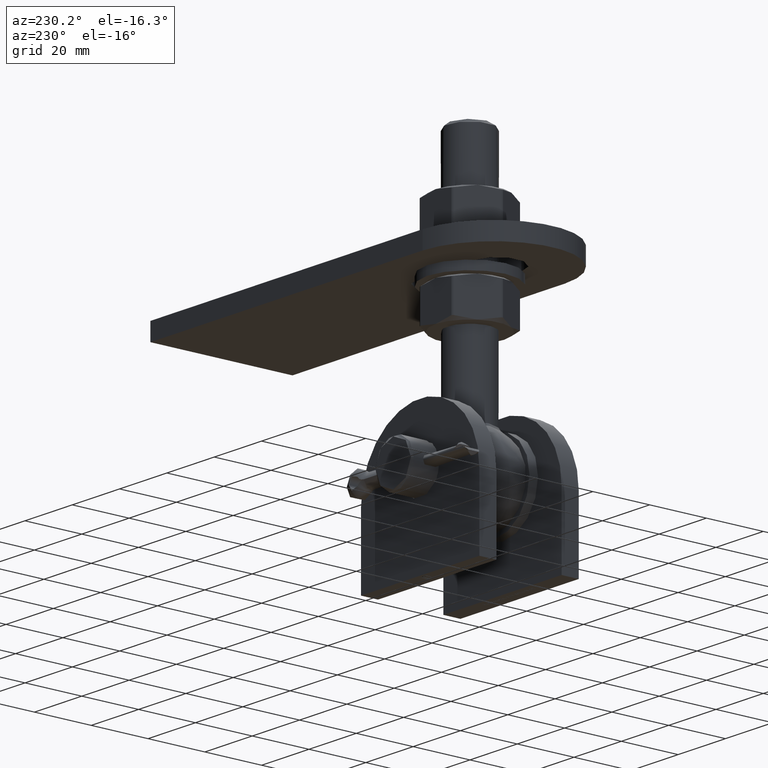
[diagram: clean part render]
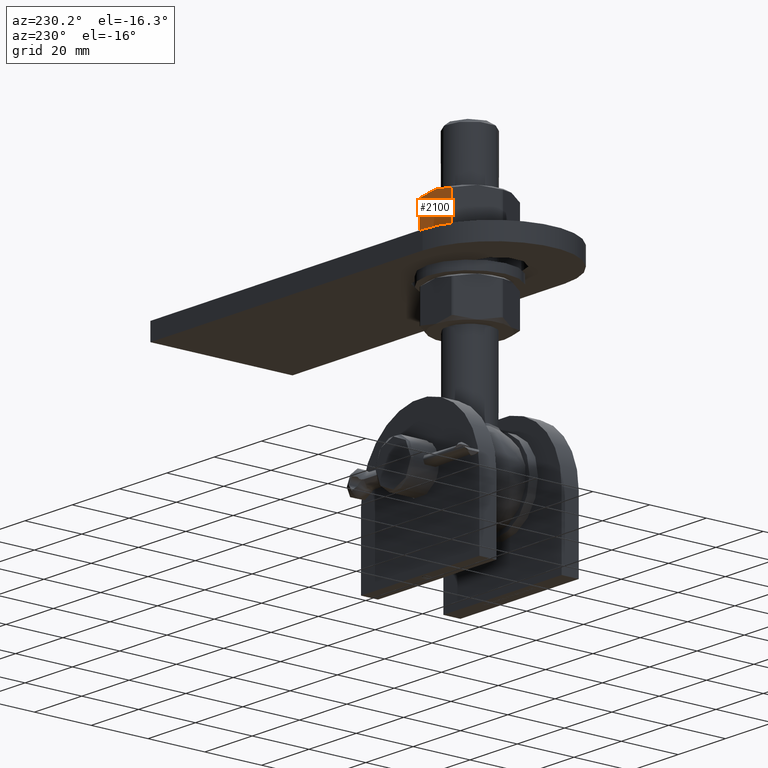
[diagram: same view with one face highlighted and labeled with its STEP entity id]
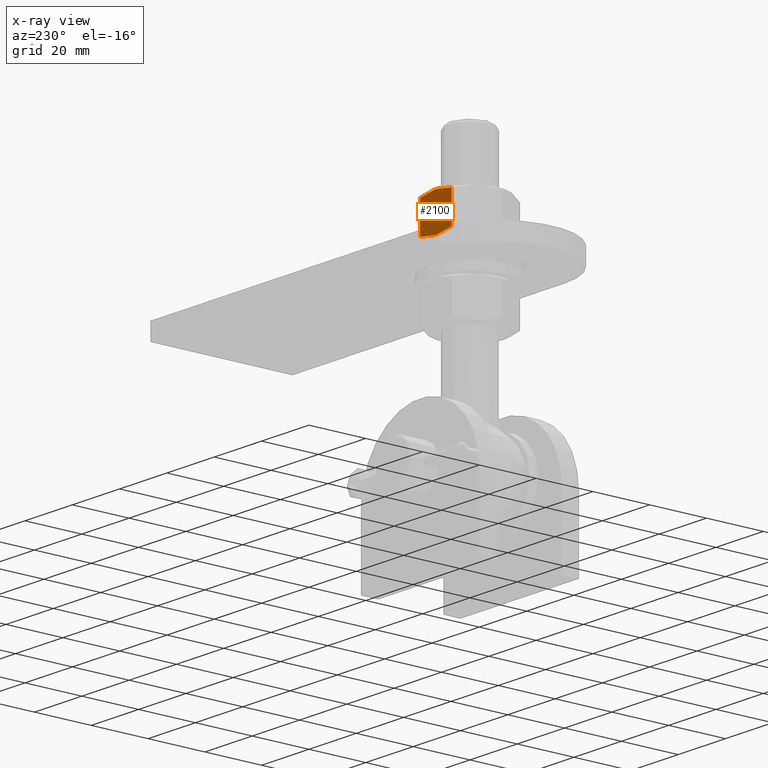
[diagram: x-ray of the same camera — body ghosted, the highlighted face saturated]
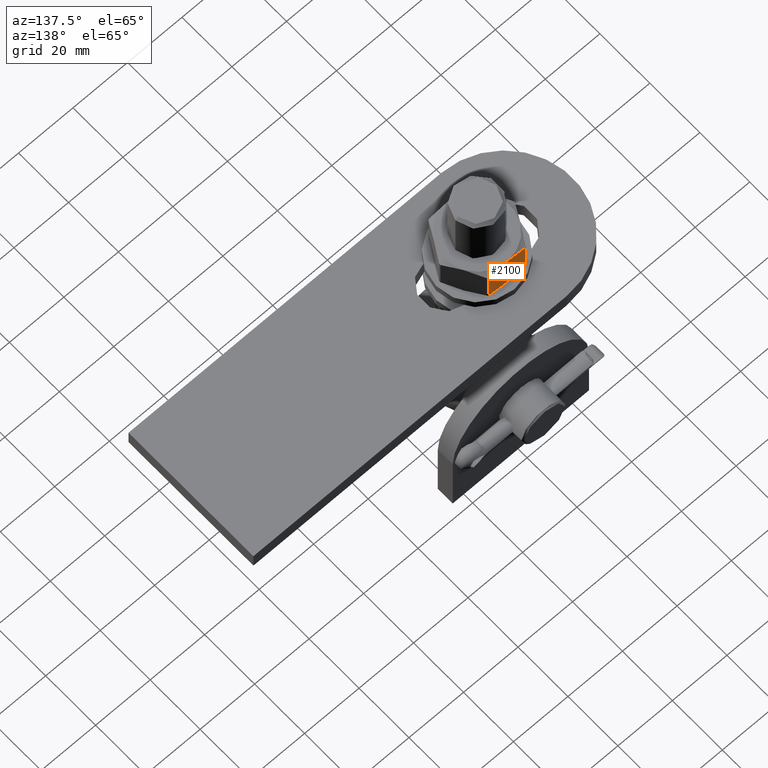
[diagram: same view with one face highlighted and labeled with its STEP entity id]
A machine part, auxiliary view. The second image highlights one B-rep face of the part: STEP entity #2100.
The next image is the same camera in x-ray: the body ghosted, the highlighted face saturated — about 0% of this face is hidden behind the body in this view.
A second angle (auxiliary view) of the same face is appended — the face is thin or edge-on in the first view.
In plain terms, the highlighted planar face has unit normal (0, -1, -0).
Its self-contained STEP definition (entity closure, byte-faithful):
#94 = ORIENTED_EDGE ( 'NONE', *, *, #20217, .T. ) ;
#117 = CARTESIAN_POINT ( 'NONE',  ( 4.476170215682643949, -6.059454543503317581, -11.99999999999998579 ) ) ;
#148 = B_SPLINE_CURVE_WITH_KNOTS ( 'NONE', 3,
 ( #28881, #28066, #24069, #3746, #8105, #25838 ),
 .UNSPECIFIED., .F., .F.,
 ( 4, 2, 4 ),
 ( 0.01207366422126375689, 0.01542013120109712865, 0.01876659818093050214 ),
 .UNSPECIFIED. ) ;
#207 = CARTESIAN_POINT ( 'NONE',  ( -1.502314598737163567E-15, -6.500000000000005329, -11.99999999999998757 ) ) ;
#299 = CARTESIAN_POINT ( 'NONE',  ( -1.502314598737166525E-15, 6.500000000000005329, -11.99999999999998757 ) ) ;
#391 = CARTESIAN_POINT ( 'NONE',  ( -2.234743191283686148, 6.407875498875736930, -11.99999999999998401 ) ) ;
#671 = CARTESIAN_POINT ( 'NONE',  ( -6.639528095681161091, 5.510220883462258357, -11.99999999999998401 ) ) ;
#1168 = B_SPLINE_CURVE_WITH_KNOTS ( 'NONE', 3,
 ( #671, #15970, #5104, #391, #2744, #299 ),
 .UNSPECIFIED., .F., .F.,
 ( 4, 2, 4 ),
 ( 0.01265961203048443680, 0.01601465630321311992, 0.01936970057594180478 ),
 .UNSPECIFIED. ) ;
#1419 = CARTESIAN_POINT ( 'NONE',  ( -1.502314598737166525E-15, 6.500000000000005329, -11.99999999999998757 ) ) ;
#1968 = VECTOR ( 'NONE', #14675, 1000.000000000000000 ) ;
#2100 = ADVANCED_FACE ( 'NONE', ( #13572 ), #3553, .F. ) ;
#2139 = CARTESIAN_POINT ( 'NONE',  ( 1.122912357192198174, 6.477208455690142586, -11.99999999999998934 ) ) ;
#2438 = CARTESIAN_POINT ( 'NONE',  ( 0.5605972413833044676, 6.500000000000015987, -11.99999999999998579 ) ) ;
#2744 = CARTESIAN_POINT ( 'NONE',  ( -1.120843460520755341, 6.500000000000014211, -11.99999999999998579 ) ) ;
#3553 = PLANE ( 'NONE',  #28724 ) ;
#3746 = CARTESIAN_POINT ( 'NONE',  ( -4.450555589882172924, -6.064590613802884000, -11.99999999999998046 ) ) ;
#4878 = CARTESIAN_POINT ( 'NONE',  ( 6.639528095680687692, 6.500000000000005329, -11.99999999999998579 ) ) ;
#4909 = CARTESIAN_POINT ( 'NONE',  ( 2.812232842606239291, -6.318972809719037187, -11.99999999999998934 ) ) ;
#5104 = CARTESIAN_POINT ( 'NONE',  ( -4.450555589882184471, 6.064590613802884889, -11.99999999999998579 ) ) ;
#6330 = VERTEX_POINT ( 'NONE', #23798 ) ;
#8105 = CARTESIAN_POINT ( 'NONE',  ( -5.557285300470986122, -5.812721408234619247, -11.99999999999998579 ) ) ;
#9105 = CARTESIAN_POINT ( 'NONE',  ( -1.502314598737166525E-15, 6.500000000000005329, -11.99999999999998757 ) ) ;
#9239 = CARTESIAN_POINT ( 'NONE',  ( 2.250940326994603335, -6.386546577122198975, -11.99999999999998757 ) ) ;
#9662 = EDGE_CURVE ( 'NONE', #10666, #6330, #148, .T. ) ;
#10449 = EDGE_CURVE ( 'NONE', #6330, #18919, #21910, .T. ) ;
#10666 = VERTEX_POINT ( 'NONE', #23225 ) ;
#11575 = ORIENTED_EDGE ( 'NONE', *, *, #17944, .T. ) ;
#11620 = CARTESIAN_POINT ( 'NONE',  ( -6.639528095681161091, 5.510220883462258357, -11.99999999999998401 ) ) ;
#13572 = FACE_OUTER_BOUND ( 'NONE', #22397, .T. ) ;
#13590 = CARTESIAN_POINT ( 'NONE',  ( 5.564852187614546253, 5.810606367744608036, -11.99999999999998757 ) ) ;
#14227 = CARTESIAN_POINT ( 'NONE',  ( 6.639528095680686803, -5.510220883462424446, -11.99999999999998579 ) ) ;
#14675 = DIRECTION ( 'NONE',  ( -0.000000000000000000, 1.000000000000000000, 1.372308401475337047E-42 ) ) ;
#15135 = B_SPLINE_CURVE_WITH_KNOTS ( 'NONE', 3,
 ( #24951, #24667, #117, #4909, #9239, #22677, #20541, #207 ),
 .UNSPECIFIED., .F., .F.,
 ( 4, 2, 2, 4 ),
 ( 0.005378634189493592885, 0.008726149205378674889, 0.01039990671332121502, 0.01207366422126375689 ),
 .UNSPECIFIED. ) ;
#15245 = LINE ( 'NONE', #4878, #20165 ) ;
#15970 = CARTESIAN_POINT ( 'NONE',  ( -5.557285300470981682, 5.812721408234619247, -11.99999999999998579 ) ) ;
#17944 = EDGE_CURVE ( 'NONE', #18919, #20511, #1168, .T. ) ;
#18027 = ORIENTED_EDGE ( 'NONE', *, *, #9662, .T. ) ;
#18919 = VERTEX_POINT ( 'NONE', #11620 ) ;
#18963 = VERTEX_POINT ( 'NONE', #24790 ) ;
#19062 = CARTESIAN_POINT ( 'NONE',  ( -6.639528095680693909, 6.500000000000005329, -11.99999999999998401 ) ) ;
#19211 = DIRECTION ( 'NONE',  ( 1.251928832280964955E-16, 1.372303628521972583E-42, 1.000000000000000000 ) ) ;
#19634 = ORIENTED_EDGE ( 'NONE', *, *, #21156, .T. ) ;
#20028 = CARTESIAN_POINT ( 'NONE',  ( 2.250940326994610441, 6.386546577122197199, -11.99999999999998757 ) ) ;
#20165 = VECTOR ( 'NONE', #27243, 1000.000000000000000 ) ;
#20217 = EDGE_CURVE ( 'NONE', #20511, #18963, #21022, .T. ) ;
#20511 = VERTEX_POINT ( 'NONE', #1419 ) ;
#20541 = CARTESIAN_POINT ( 'NONE',  ( 0.5605972413833001378, -6.500000000000015099, -11.99999999999998579 ) ) ;
#21022 = B_SPLINE_CURVE_WITH_KNOTS ( 'NONE', 3,
 ( #9105, #2438, #2139, #20028, #24816, #26953, #13590, #27050 ),
 .UNSPECIFIED., .F., .F.,
 ( 4, 2, 2, 4 ),
 ( 0.01936970057594180478, 0.02104774807343687271, 0.02272579557093193717, 0.02608189056592206956 ),
 .UNSPECIFIED. ) ;
#21156 = EDGE_CURVE ( 'NONE', #25149, #10666, #15135, .T. ) ;
#21469 = ORIENTED_EDGE ( 'NONE', *, *, #10449, .T. ) ;
#21791 = EDGE_CURVE ( 'NONE', #18963, #25149, #15245, .T. ) ;
#21910 = LINE ( 'NONE', #19062, #1968 ) ;
#22397 = EDGE_LOOP ( 'NONE', ( #18027, #21469, #11575, #94, #24888, #19634 ) ) ;
#22677 = CARTESIAN_POINT ( 'NONE',  ( 1.122912357192191513, -6.477208455690142586, -11.99999999999998401 ) ) ;
#23225 = CARTESIAN_POINT ( 'NONE',  ( -1.502314598737163567E-15, -6.500000000000005329, -11.99999999999998757 ) ) ;
#23798 = CARTESIAN_POINT ( 'NONE',  ( -6.639528095681162867, -5.510220883462258357, -11.99999999999998401 ) ) ;
#24069 = CARTESIAN_POINT ( 'NONE',  ( -2.234743191283684816, -6.407875498875739595, -11.99999999999998934 ) ) ;
#24667 = CARTESIAN_POINT ( 'NONE',  ( 5.564852187614536483, -5.810606367744609813, -11.99999999999998757 ) ) ;
#24790 = CARTESIAN_POINT ( 'NONE',  ( 6.639528095680688580, 5.510220883462368491, -11.99999999999998579 ) ) ;
#24816 = CARTESIAN_POINT ( 'NONE',  ( 2.812232842606247729, 6.318972809719035411, -11.99999999999998579 ) ) ;
#24888 = ORIENTED_EDGE ( 'NONE', *, *, #21791, .T. ) ;
#24951 = CARTESIAN_POINT ( 'NONE',  ( 6.639528095680686803, -5.510220883462424446, -11.99999999999998579 ) ) ;
#25149 = VERTEX_POINT ( 'NONE', #14227 ) ;
#25838 = CARTESIAN_POINT ( 'NONE',  ( -6.639528095681162867, -5.510220883462258357, -11.99999999999998401 ) ) ;
#25939 = DIRECTION ( 'NONE',  ( 1.000000000000000000, 0.000000000000000000, -1.251928832280964955E-16 ) ) ;
#26953 = CARTESIAN_POINT ( 'NONE',  ( 4.476170215682654607, 6.059454543503317581, -11.99999999999998934 ) ) ;
#27050 = CARTESIAN_POINT ( 'NONE',  ( 6.639528095680688580, 5.510220883462368491, -11.99999999999998579 ) ) ;
#27243 = DIRECTION ( 'NONE',  ( 0.000000000000000000, -1.000000000000000000, -1.372308401475337047E-42 ) ) ;
#28066 = CARTESIAN_POINT ( 'NONE',  ( -1.120843460520756896, -6.500000000000015099, -11.99999999999998579 ) ) ;
#28162 = CARTESIAN_POINT ( 'NONE',  ( 6.928203230275501667, 6.500000000000005329, -11.99999999999998579 ) ) ;
#28724 = AXIS2_PLACEMENT_3D ( 'NONE', #28162, #19211, #25939 ) ;
#28881 = CARTESIAN_POINT ( 'NONE',  ( -1.502314598737163567E-15, -6.500000000000005329, -11.99999999999998757 ) ) ;